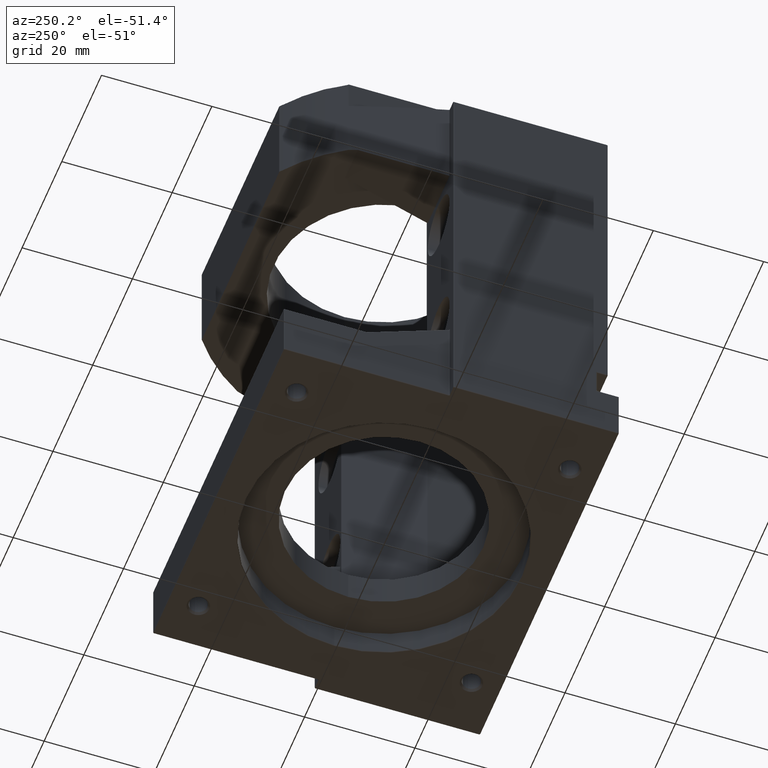
[diagram: clean part render]
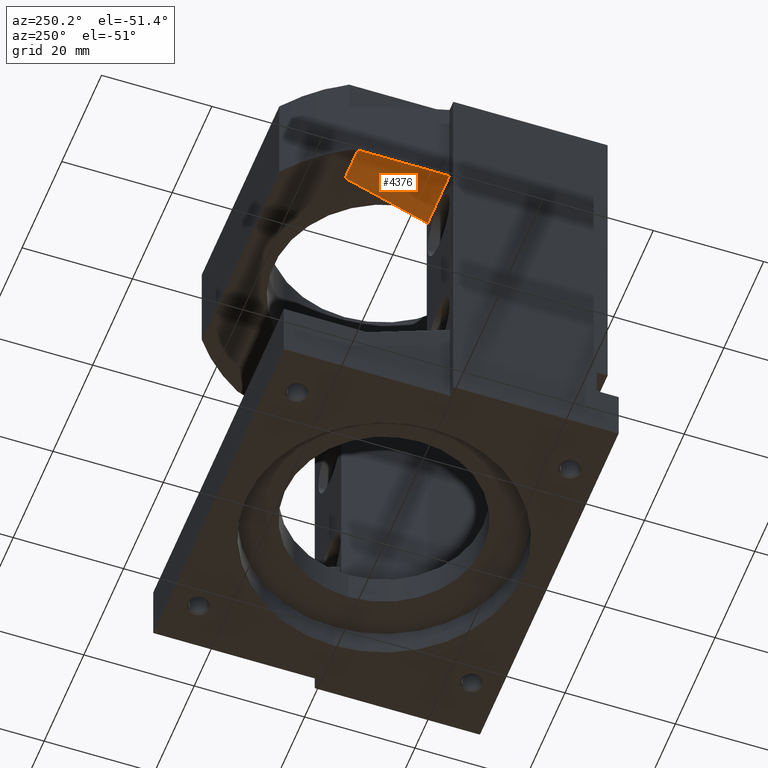
[diagram: same view with one face highlighted and labeled with its STEP entity id]
A machine part, auxiliary view. The second image highlights one B-rep face of the part: STEP entity #4376.
In plain terms, the highlighted planar face has unit normal (-0, -0.3714, 0.9285).
Its self-contained STEP definition (entity closure, byte-faithful):
#411 = VERTEX_POINT ( 'NONE', #5798 ) ;
#412 = VERTEX_POINT ( 'NONE', #5746 ) ;
#556 = VERTEX_POINT ( 'NONE', #3298 ) ;
#557 = VERTEX_POINT ( 'NONE', #3287 ) ;
#758 = EDGE_LOOP ( 'NONE', ( #896, #897, #894, #899 ) ) ;
#894 = ORIENTED_EDGE ( 'NONE', *, *, #4231, .F. ) ;
#896 = ORIENTED_EDGE ( 'NONE', *, *, #4230, .F. ) ;
#897 = ORIENTED_EDGE ( 'NONE', *, *, #4309, .F. ) ;
#899 = ORIENTED_EDGE ( 'NONE', *, *, #6151, .F. ) ;
#1339 = LINE ( 'NONE', #3314, #5607 ) ;
#1392 = LINE ( 'NONE', #1941, #4537 ) ;
#1466 = FACE_OUTER_BOUND ( 'NONE', #758, .T. ) ;
#1706 = LINE ( 'NONE', #3585, #5216 ) ;
#1941 = CARTESIAN_POINT ( 'NONE',  ( -33.00000000000000000, 15.00000000000000700, 60.50000000000000700 ) ) ;
#1942 = DIRECTION ( 'NONE',  ( -1.000000000000000000, 1.156482317317871500E-016, -0.0000000000000000000 ) ) ;
#2143 = PLANE ( 'NONE',  #4671 ) ;
#2144 = CARTESIAN_POINT ( 'NONE',  ( -32.99999999999999300, 7.517135062566162000E-015, 54.50000000000000000 ) ) ;
#2145 = DIRECTION ( 'NONE',  ( -4.295067500202458900E-017, -0.3713906763541040500, 0.9284766908852591900 ) ) ;
#2146 = DIRECTION ( 'NONE',  ( 0.0000000000000000000, 0.9284766908852591900, 0.3713906763541040500 ) ) ;
#3077 = DIRECTION ( 'NONE',  ( 0.0000000000000000000, 0.9284766908852591900, 0.3713906763541040500 ) ) ;
#3207 = CARTESIAN_POINT ( 'NONE',  ( -30.16062732175263200, 10.04774271907606800, 58.51909708763042100 ) ) ;
#3249 = CARTESIAN_POINT ( 'NONE',  ( -28.50635209609880900, 15.00000000000000700, 60.50000000000000700 ) ) ;
#3258 = CARTESIAN_POINT ( 'NONE',  ( -33.00000000000001400, 5.184231077631842900E-016, 54.50000000000000000 ) ) ;
#3287 = CARTESIAN_POINT ( 'NONE',  ( -33.00000000000001400, 5.184231077631842900E-016, 54.50000000000000000 ) ) ;
#3298 = CARTESIAN_POINT ( 'NONE',  ( -21.99999999999999600, 8.199682129536946100E-015, 54.50000000000000000 ) ) ;
#3314 = CARTESIAN_POINT ( 'NONE',  ( -21.99999999999999600, 6.245004513516503200E-015, 54.50000000000000000 ) ) ;
#3348 = CARTESIAN_POINT ( 'NONE',  ( -31.65899993026385300, 5.046107164106151000, 56.51844286564244900 ) ) ;
#3585 = CARTESIAN_POINT ( 'NONE',  ( -21.50000000000001400, 8.347237722926682600E-015, 54.50000000000000000 ) ) ;
#3586 = DIRECTION ( 'NONE',  ( 1.000000000000000000, 1.224646799147352000E-016, 9.524516465860904400E-017 ) ) ;
#4230 = EDGE_CURVE ( 'NONE', #411, #557, #6426, .T. ) ;
#4231 = EDGE_CURVE ( 'NONE', #556, #412, #1339, .T. ) ;
#4309 = EDGE_CURVE ( 'NONE', #412, #411, #1392, .T. ) ;
#4376 = ADVANCED_FACE ( 'NONE', ( #1466 ), #2143, .F. ) ;
#4537 = VECTOR ( 'NONE', #1942, 1000.000000000000000 ) ;
#4671 = AXIS2_PLACEMENT_3D ( 'NONE', #2144, #2145, #2146 ) ;
#5216 = VECTOR ( 'NONE', #3586, 1000.000000000000000 ) ;
#5607 = VECTOR ( 'NONE', #3077, 1000.000000000000100 ) ;
#5746 = CARTESIAN_POINT ( 'NONE',  ( -21.99999999999999300, 15.00000000000000700, 60.50000000000000700 ) ) ;
#5798 = CARTESIAN_POINT ( 'NONE',  ( -28.50635209609880900, 15.00000000000000700, 60.50000000000000700 ) ) ;
#6151 = EDGE_CURVE ( 'NONE', #557, #556, #1706, .T. ) ;
#6426 =( BOUNDED_CURVE ( )  B_SPLINE_CURVE ( 3, ( #3249, #3207, #3348, #3258 ),
 .UNSPECIFIED., .F., .T. ) 
 B_SPLINE_CURVE_WITH_KNOTS ( ( 4, 4 ),
 ( 1.248405692181024000, 1.311050477800594000 ),
 .UNSPECIFIED. ) 
 CURVE ( )  GEOMETRIC_REPRESENTATION_ITEM ( )  RATIONAL_B_SPLINE_CURVE ( ( 1.000000000000000000, 0.9996729959726288200, 0.9996729959726288200, 1.000000000000000000 ) ) 
 REPRESENTATION_ITEM ( '' )  );